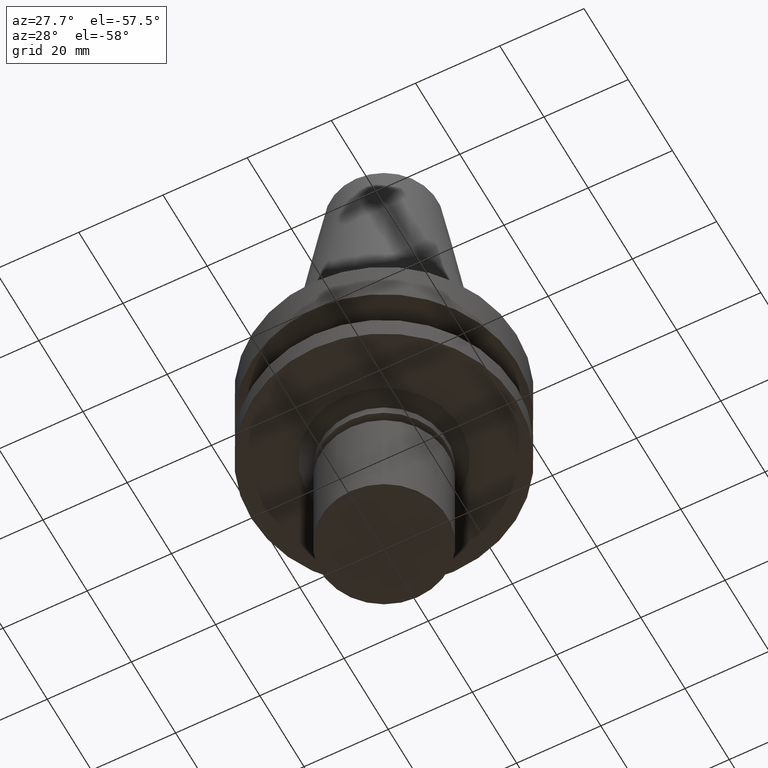
[diagram: clean part render]
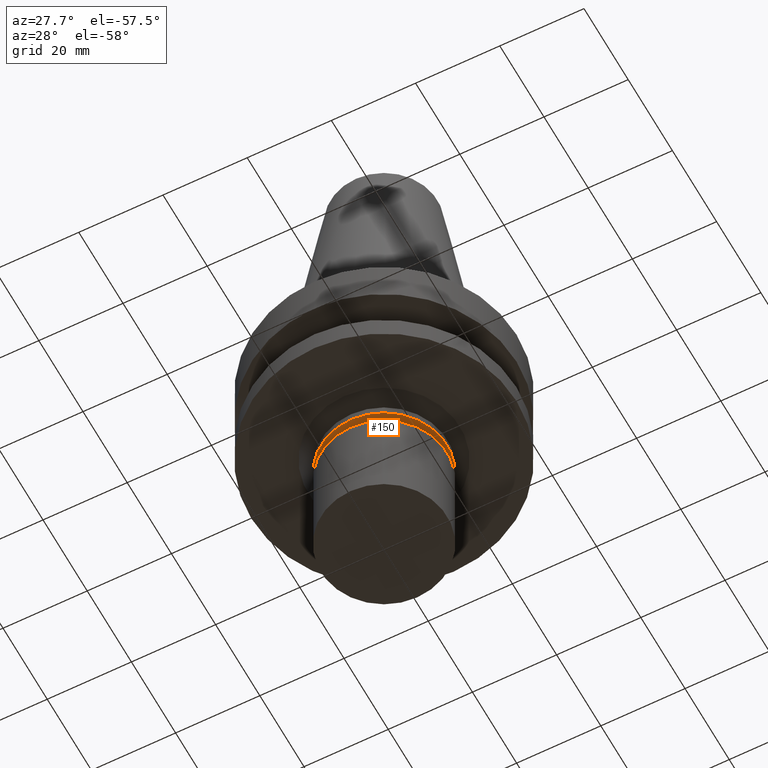
[diagram: same view with one face highlighted and labeled with its STEP entity id]
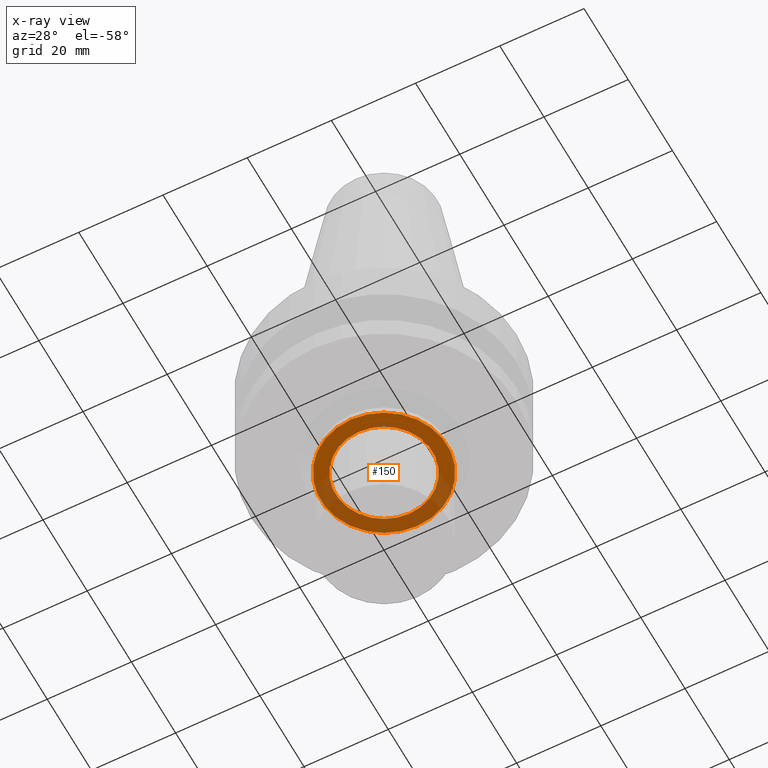
[diagram: x-ray of the same camera — body ghosted, the highlighted face saturated]
A machine part, auxiliary view. The second image highlights one B-rep face of the part: STEP entity #150.
The next image is the same camera in x-ray: the body ghosted, the highlighted face saturated — about 45% of this face is hidden behind the body in this view.
In plain terms, the highlighted planar face has unit normal (0, 0, -1).
Its self-contained STEP definition (entity closure, byte-faithful):
#100=EDGE_CURVE('Unnamed[1]',#239,#239,#240,.T.);
#110=EDGE_CURVE('Unnamed[1]',#254,#254,#255,.T.);
#150=ADVANCED_FACE('Unnamed[1]',(#315,#316),#317,.T.);
#239=VERTEX_POINT('',#423);
#240=CIRCLE('',#424,11.4999999999907);
#254=VERTEX_POINT('',#442);
#255=CIRCLE('',#443,15.0);
#315=FACE_BOUND('',#519,.T.);
#316=FACE_OUTER_BOUND('',#520,.T.);
#317=PLANE('',#521);
#423=CARTESIAN_POINT('',(1.96555811263151E-015,11.4999999999907,-32.1000000000001));
#424=AXIS2_PLACEMENT_3D('',#622,#623,#624);
#442=CARTESIAN_POINT('',(1.96555811263146E-015,15.0,-32.0999999999994));
#443=AXIS2_PLACEMENT_3D('',#639,#640,#641);
#519=EDGE_LOOP('',(#707));
#520=EDGE_LOOP('',(#708));
#521=AXIS2_PLACEMENT_3D('',#709,#710,#711);
#622=CARTESIAN_POINT('',(1.96555811263151E-015,2.43002816039337E-014,-32.1000000000001));
#623=DIRECTION('',(6.12323399573677E-017,-5.36731610657157E-016,-1.0));
#624=DIRECTION('',(2.80381797188577E-032,1.0,-5.36731610657157E-016));
#639=CARTESIAN_POINT('',(1.96555811263146E-015,2.43002816039341E-014,-32.0999999999994));
#640=DIRECTION('',(6.12323399573677E-017,-5.36731610657083E-016,-1.0));
#641=DIRECTION('',(2.80381797188493E-032,1.0,-5.36731610657083E-016));
#707=ORIENTED_EDGE('',*,*,#100,.F.);
#708=ORIENTED_EDGE('',*,*,#110,.T.);
#709=CARTESIAN_POINT('',(1.96555811263148E-015,13.2499999999953,-32.0999999999997));
#710=DIRECTION('',(6.12323399573677E-017,2.03134674896546E-013,-1.0));
#711=DIRECTION('',(-1.24432386231254E-029,1.0,2.03134674896546E-013));